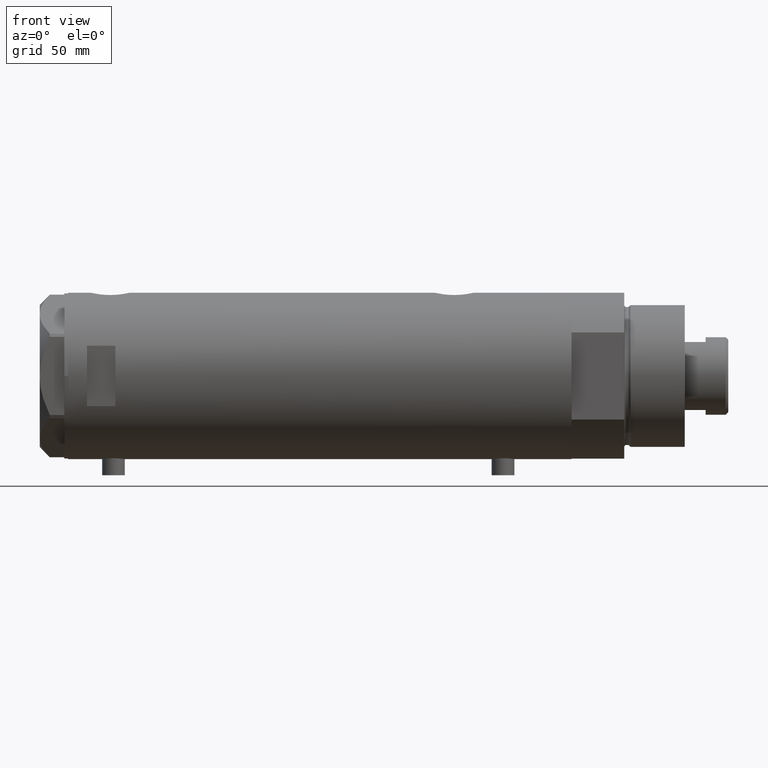
[diagram: clean part render]
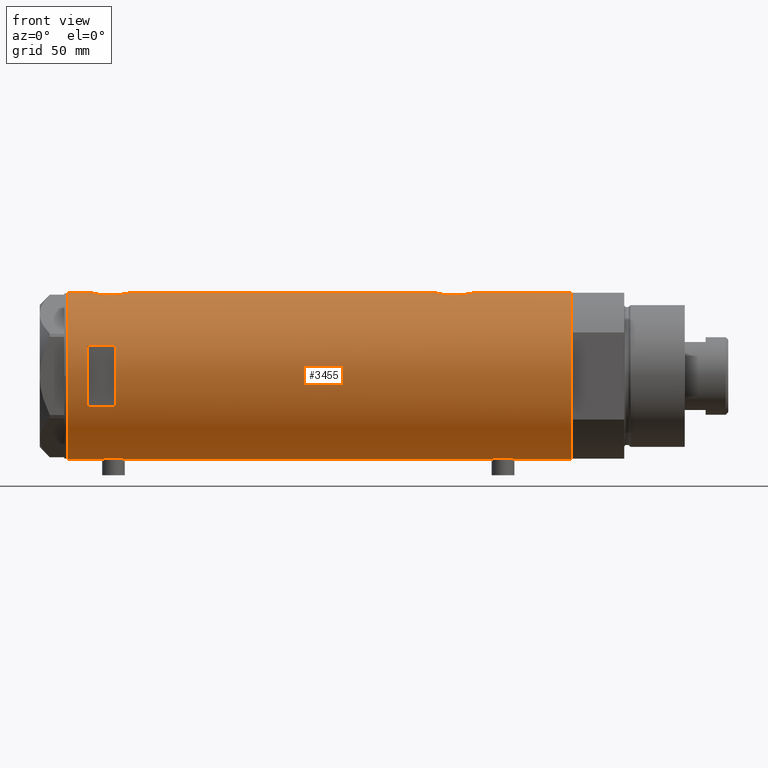
[diagram: same view with one face highlighted and labeled with its STEP entity id]
A machine part, front view. The second image highlights one B-rep face of the part: STEP entity #3455.
In plain terms, the highlighted cylindrical surface (partial cylindrical patch) has radius 44 mm, axis along (-1, -0, 0).
Its self-contained STEP definition (entity closure, byte-faithful):
#14 = CARTESIAN_POINT ( 'NONE',  ( 43.13833976206233700, -8.672905216733548528, -66.07967078979183384 ) ) ;
#34 = CARTESIAN_POINT ( 'NONE',  ( -43.97755541524606571, -1.419649999726221967, 103.1098885607636220 ) ) ;
#53 = LINE ( 'NONE', #1798, #298 ) ;
#59 = CARTESIAN_POINT ( 'NONE',  ( 43.13689707656755701, -8.680169016269172033, -76.10836902111202562 ) ) ;
#76 = VERTEX_POINT ( 'NONE', #2762 ) ;
#117 = CARTESIAN_POINT ( 'NONE',  ( -44.00000000000000000, 4.742435893011557518E-16, -90.64999999999997726 ) ) ;
#120 = CARTESIAN_POINT ( 'NONE',  ( 43.92391465552169194, -2.605621203777309436, 101.2398198489822221 ) ) ;
#136 = CARTESIAN_POINT ( 'NONE',  ( -43.80623767923739109, -4.134861581628527460, 113.9043636726069053 ) ) ;
#163 = CARTESIAN_POINT ( 'NONE',  ( -43.95404166778755695, -2.020054257598466574, -90.98191054514344955 ) ) ;
#168 = CARTESIAN_POINT ( 'NONE',  ( 44.00000000000000000, -2.552687571866728611E-15, 100.8999999999999915 ) ) ;
#184 = CARTESIAN_POINT ( 'NONE',  ( -43.58358352828439308, -6.039443007521657414, 107.5783690161426165 ) ) ;
#209 = CARTESIAN_POINT ( 'NONE',  ( 43.07447880731470491, -8.980869115410039072, 115.3470997020410209 ) ) ;
#213 = CARTESIAN_POINT ( 'NONE',  ( -43.57664920749031978, -6.089110472216501257, -98.32363086869413848 ) ) ;
#215 = EDGE_CURVE ( 'NONE', #2639, #4529, #2542, .T. ) ;
#223 = CIRCLE ( 'NONE', #3681, 44.00000000000000000 ) ;
#236 = CARTESIAN_POINT ( 'NONE',  ( -43.83513771791772484, -3.820747781112549202, -91.93678981703624231 ) ) ;
#264 = ORIENTED_EDGE ( 'NONE', *, *, #2230, .T. ) ;
#291 = CARTESIAN_POINT ( 'NONE',  ( -43.58327167020068060, -6.041691433183235205, -95.28672449216631435 ) ) ;
#298 = VECTOR ( 'NONE', #4284, 1000.000000000000000 ) ;
#316 = CARTESIAN_POINT ( 'NONE',  ( -43.71916086763248899, -4.968610719017467758, 105.3866400114537214 ) ) ;
#333 = B_SPLINE_CURVE_WITH_KNOTS ( 'NONE', 3,
 ( #3476, #4399, #2022, #1840, #2979, #2638, #2284, #1357, #1668, #635, #3083, #1690, #990, #655, #3509, #14, #2391, #2037, #2459, #4525, #2760, #2411, #2062, #2855, #1109, #3302, #3207, #2167, #1204, #59, #3625, #394, #1475, #1451, #2186, #434, #2210, #3282, #3920, #2540, #1832, #2902, #2237, #758, #2562, #1806, #462 ),
 .UNSPECIFIED., .F., .F.,
 ( 4, 2, 2, 2, 2, 2, 2, 2, 2, 2, 1, 2, 2, 2, 2, 2, 2, 2, 2, 2, 2, 2, 2, 4 ),
 ( 0.03136730421198213187, 0.03332724096696802751, 0.03528717772195392316, 0.03626714609944686751, 0.03724711447693981187, 0.03920705123192570751, 0.04018701960941865187, 0.04116698798691159622, 0.04312692474189751268, 0.04410689311939047785, 0.04508686149688344302, 0.04606682987437640819, 0.04704679825186937336, 0.04900673500685525513, 0.05096667176184113690, 0.05292660851682702561, 0.05390657689431999078, 0.05488654527181294207, 0.05586651364930590030, 0.05684648202679885853, 0.05880641878178477500, 0.05978638715927772629, 0.06076635553677067064, 0.06272629229175656629 ),
 .UNSPECIFIED. ) ;
#336 = ORIENTED_EDGE ( 'NONE', *, *, #1218, .F. ) ;
#338 = VERTEX_POINT ( 'NONE', #3053 ) ;
#361 = CARTESIAN_POINT ( 'NONE',  ( 44.00000000000000000, -2.552687571866728611E-15, 100.8999999999999915 ) ) ;
#365 = CARTESIAN_POINT ( 'NONE',  ( 0.000000000000000000, 0.000000000000000000, 108.1999999999999602 ) ) ;
#394 = CARTESIAN_POINT ( 'NONE',  ( 43.27861175590268772, -7.937636171351970304, -77.19102867990997652 ) ) ;
#434 = CARTESIAN_POINT ( 'NONE',  ( 43.50208939911752992, -6.605519787823896927, -78.61487246254434069 ) ) ;
#452 = CARTESIAN_POINT ( 'NONE',  ( 42.96573602780768653, -9.487415353952515673, 107.6726545541637989 ) ) ;
#462 = CARTESIAN_POINT ( 'NONE',  ( 44.00000000000000000, -3.135075661981687665E-15, -81.09999999999999432 ) ) ;
#464 = DIRECTION ( 'NONE',  ( -0.000000000000000000, -0.000000000000000000, -1.000000000000000000 ) ) ;
#473 = EDGE_LOOP ( 'NONE', ( #3429, #3894, #2572, #2574 ) ) ;
#492 = CARTESIAN_POINT ( 'NONE',  ( -43.64013512596971367, -5.618144550806293047, 111.9688425437316681 ) ) ;
#497 = CARTESIAN_POINT ( 'NONE',  ( 43.99999999999998579, -0.6628808997490068800, 100.8999999999999631 ) ) ;
#503 = VERTEX_POINT ( 'NONE', #1442 ) ;
#516 = CARTESIAN_POINT ( 'NONE',  ( -43.97029046111977379, -1.628482392291957126, 115.2375861979205922 ) ) ;
#523 = CARTESIAN_POINT ( 'NONE',  ( 42.92195198079053142, -9.681069926205539744, 108.3106749909348281 ) ) ;
#531 = LINE ( 'NONE', #3230, #1759 ) ;
#542 = CARTESIAN_POINT ( 'NONE',  ( -43.99417593155912698, -0.8219945290704717689, 115.4093810241296012 ) ) ;
#548 = CARTESIAN_POINT ( 'NONE',  ( 43.27861175590267351, -7.937636171351968528, 104.8089713200900377 ) ) ;
#551 = CARTESIAN_POINT ( 'NONE',  ( -43.74813644611199948, -4.709999724143497879, -92.77155956056769526 ) ) ;
#570 = CARTESIAN_POINT ( 'NONE',  ( -43.97059312650996787, -1.620278982928820888, -102.9397869138586827 ) ) ;
#581 = DIRECTION ( 'NONE',  ( -0.000000000000000000, 0.000000000000000000, -1.000000000000000000 ) ) ;
#627 = CARTESIAN_POINT ( 'NONE',  ( -43.57636709704394917, -6.091127289750676077, -95.48500674339015859 ) ) ;
#631 = CARTESIAN_POINT ( 'NONE',  ( -43.88927795770375440, -3.124736516396337649, 103.7833259507618919 ) ) ;
#635 = CARTESIAN_POINT ( 'NONE',  ( 43.57790701154753776, -6.104591320335878812, -63.15258699105066853 ) ) ;
#640 = VERTEX_POINT ( 'NONE', #2640 ) ;
#655 = CARTESIAN_POINT ( 'NONE',  ( 43.27890888111421930, -7.936045294464958211, -65.00681563342804736 ) ) ;
#722 = AXIS2_PLACEMENT_3D ( 'NONE', #4447, #581, #4093 ) ;
#723 = DIRECTION ( 'NONE',  ( -1.000000000000000000, 0.000000000000000000, 0.000000000000000000 ) ) ;
#758 = CARTESIAN_POINT ( 'NONE',  ( 43.94187300917955952, -2.283844398366611905, -80.84126046817048916 ) ) ;
#774 = CARTESIAN_POINT ( 'NONE',  ( 44.00000000000000000, -3.917104602093038540E-21, 120.8999999999999773 ) ) ;
#813 = CIRCLE ( 'NONE', #3984, 44.00000000000000000 ) ;
#814 = EDGE_CURVE ( 'NONE', #640, #338, #3128, .T. ) ;
#853 = CARTESIAN_POINT ( 'NONE',  ( 43.94187300917955241, -2.283844398366610129, 101.1587395318294966 ) ) ;
#863 = CARTESIAN_POINT ( 'NONE',  ( -15.96871942267132027, -40.99999999999999289, -133.1999999999999886 ) ) ;
#868 = CARTESIAN_POINT ( 'NONE',  ( -43.66469451360045895, -5.426465874727613325, 112.3277459186421083 ) ) ;
#874 = CARTESIAN_POINT ( 'NONE',  ( 43.13833976206234411, -8.672905216733555633, 115.9203292102081519 ) ) ;
#899 = CARTESIAN_POINT ( 'NONE',  ( 43.92776409818818451, -2.602555515054472135, 120.5780334928707589 ) ) ;
#909 = CIRCLE ( 'NONE', #2963, 44.00000000000000000 ) ;
#919 = CARTESIAN_POINT ( 'NONE',  ( 42.86761451923558042, -9.918101748202658996, 112.2186752354962636 ) ) ;
#922 = CARTESIAN_POINT ( 'NONE',  ( -43.55380622335315621, -6.250277076879243943, -96.49110166609808914 ) ) ;
#956 = DIRECTION ( 'NONE',  ( 0.000000000000000000, 0.000000000000000000, 1.000000000000000000 ) ) ;
#990 = CARTESIAN_POINT ( 'NONE',  ( 43.35323102813806884, -7.519449998269458924, -64.49957710715733583 ) ) ;
#1001 = CARTESIAN_POINT ( 'NONE',  ( -43.55964145621772587, -6.209995197331129368, -96.08476386616428044 ) ) ;
#1003 = CARTESIAN_POINT ( 'NONE',  ( -43.93596008603760339, -2.395372424984027582, 103.4165081946938756 ) ) ;
#1011 = CARTESIAN_POINT ( 'NONE',  ( 15.96871942267132027, -40.99999999999999289, -133.1999999999999886 ) ) ;
#1109 = CARTESIAN_POINT ( 'NONE',  ( 42.84850870634927134, -10.00026508230968325, -71.75583915121741541 ) ) ;
#1128 = CARTESIAN_POINT ( 'NONE',  ( 0.000000000000000000, 0.000000000000000000, -133.1999999999999886 ) ) ;
#1134 = DIRECTION ( 'NONE',  ( 1.000000000000000000, 0.000000000000000000, 0.000000000000000000 ) ) ;
#1139 = CARTESIAN_POINT ( 'NONE',  ( -43.97029046111977379, -1.628482392291957126, -90.86241380207947316 ) ) ;
#1142 = EDGE_CURVE ( 'NONE', #4529, #640, #223, .T. ) ;
#1164 = CARTESIAN_POINT ( 'NONE',  ( 43.57790701154752355, -6.104591320335877036, 118.8474130089493173 ) ) ;
#1188 = CARTESIAN_POINT ( 'NONE',  ( -43.97729452866927602, -1.427712738744854715, -90.81177092556575303 ) ) ;
#1192 = CARTESIAN_POINT ( 'NONE',  ( 43.39114022679083860, -7.298186114522533074, 117.7441727949206154 ) ) ;
#1204 = CARTESIAN_POINT ( 'NONE',  ( 43.07321175413309788, -8.986876637256990819, -75.53428201988754154 ) ) ;
#1212 = CARTESIAN_POINT ( 'NONE',  ( -43.55964145621772587, -6.209995197331129368, 110.0152361338357139 ) ) ;
#1218 = EDGE_CURVE ( 'NONE', #3494, #503, #2006, .T. ) ;
#1227 = DIRECTION ( 'NONE',  ( 0.000000000000000000, 0.000000000000000000, 1.000000000000000000 ) ) ;
#1232 = CARTESIAN_POINT ( 'NONE',  ( -43.71863308610073773, -4.973248429199020215, 113.0073779012116830 ) ) ;
#1239 = CARTESIAN_POINT ( 'NONE',  ( 43.71528002050701645, -5.005885132985640418, 119.5630630671448529 ) ) ;
#1263 = CARTESIAN_POINT ( 'NONE',  ( -43.55981666146650610, -6.208773019004409477, -97.72437999193616065 ) ) ;
#1270 = LINE ( 'NONE', #2000, #3266 ) ;
#1276 = ORIENTED_EDGE ( 'NONE', *, *, #4532, .F. ) ;
#1325 = CARTESIAN_POINT ( 'NONE',  ( -43.74870614644074607, -4.704745394280565485, -101.0344648734002391 ) ) ;
#1326 = CARTESIAN_POINT ( 'NONE',  ( 0.000000000000000000, 0.000000000000000000, 133.1999999999999886 ) ) ;
#1347 = CARTESIAN_POINT ( 'NONE',  ( -43.58358352828439308, -6.039443007521657414, -98.52163098385737783 ) ) ;
#1357 = CARTESIAN_POINT ( 'NONE',  ( 43.71528002050702355, -5.005885132985642194, -62.43693693285512580 ) ) ;
#1369 = DIRECTION ( 'NONE',  ( 0.000000000000000000, 0.000000000000000000, 1.000000000000000000 ) ) ;
#1372 = EDGE_CURVE ( 'NONE', #338, #2639, #3152, .T. ) ;
#1397 = CARTESIAN_POINT ( 'NONE',  ( -44.00000000000000000, 5.388445781982983516E-15, 102.9499999999999886 ) ) ;
#1418 = CARTESIAN_POINT ( 'NONE',  ( 44.00000000000000000, -3.917155089190972685E-21, -61.10000000000000142 ) ) ;
#1439 = B_SPLINE_CURVE_WITH_KNOTS ( 'NONE', 3,
 ( #1397, #3800, #2106, #34, #1683, #3888, #1003, #4148, #631, #3102, #4519, #3818, #3481, #316, #3341, #1593, #2622, #2503, #184, #1575, #2314, #2246, #1447, #1212, #4024, #2983, #4397, #3721, #492, #868, #1232, #2266, #136, #3702, #3913, #3226, #1893, #3000, #516, #3671, #542, #1920, #2642 ),
 .UNSPECIFIED., .F., .F.,
 ( 4, 2, 2, 1, 2, 2, 2, 2, 2, 2, 2, 2, 2, 2, 2, 2, 2, 2, 2, 2, 2, 4 ),
 ( 0.01956509074799517994, 0.02078761141254040559, 0.02139887174481301668, 0.02201013207708563124, 0.02262139240935824580, 0.02323265274163085689, 0.02445517340617610336, 0.02567769407072134982, 0.02690021473526659629, 0.02751147506753922126, 0.02812273539981184622, 0.02934525606435713085, 0.03056777672890241548, 0.03117903706117506127, 0.03179029739344770011, 0.03301281805799302638, 0.03423533872253835264, 0.03545785938708367196, 0.03668038005162899129, 0.03729164038390166136, 0.03790290071617432449, 0.03912542138071965075 ),
 .UNSPECIFIED. ) ;
#1442 = CARTESIAN_POINT ( 'NONE',  ( -44.00000000000000000, 4.742435893011557518E-16, -90.64999999999997726 ) ) ;
#1447 = CARTESIAN_POINT ( 'NONE',  ( -43.55380622335315621, -6.250277076879243943, 109.6088983339019052 ) ) ;
#1451 = CARTESIAN_POINT ( 'NONE',  ( 43.39001814939470592, -7.304817421876464323, -77.93703460671675032 ) ) ;
#1473 = CYLINDRICAL_SURFACE ( 'NONE', #1557, 44.00000000000000000 ) ;
#1475 = CARTESIAN_POINT ( 'NONE',  ( 43.35257225115238811, -7.523216248090029090, -77.69605303592344114 ) ) ;
#1516 = CARTESIAN_POINT ( 'NONE',  ( 43.98503203903423753, -1.316644100880406176, 100.9652704470436788 ) ) ;
#1557 = AXIS2_PLACEMENT_3D ( 'NONE', #1128, #2923, #3994 ) ;
#1575 = CARTESIAN_POINT ( 'NONE',  ( -43.57664920749031978, -6.089110472216501257, 107.7763691313058985 ) ) ;
#1593 = CARTESIAN_POINT ( 'NONE',  ( -43.64064219598290606, -5.614224114468902904, 106.4231451038052683 ) ) ;
#1600 = CARTESIAN_POINT ( 'NONE',  ( 43.46477581456304051, -6.845969322274853219, 103.6035553987669005 ) ) ;
#1602 = CARTESIAN_POINT ( 'NONE',  ( -43.59994860325051036, -5.920144153815573240, -98.91406357569759678 ) ) ;
#1630 = VERTEX_POINT ( 'NONE', #1750 ) ;
#1643 = CARTESIAN_POINT ( 'NONE',  ( -43.95442538259509746, -2.011679190499023662, -102.8209354650977758 ) ) ;
#1656 = CARTESIAN_POINT ( 'NONE',  ( -44.00000000000000000, 5.388445916248353619E-15, -133.1999999999999886 ) ) ;
#1659 = CARTESIAN_POINT ( 'NONE',  ( -43.87623998657198143, -3.302247739865014964, -102.2103434351974158 ) ) ;
#1666 = EDGE_CURVE ( 'NONE', #1630, #3930, #1780, .T. ) ;
#1668 = CARTESIAN_POINT ( 'NONE',  ( 43.68175117880464597, -5.289576318274436417, -62.60722456708439410 ) ) ;
#1683 = CARTESIAN_POINT ( 'NONE',  ( -43.97059312650996787, -1.620278982928820888, 103.1602130861412689 ) ) ;
#1690 = CARTESIAN_POINT ( 'NONE',  ( 43.39114022679083860, -7.298186114522532186, -64.25582720507939882 ) ) ;
#1712 = DIRECTION ( 'NONE',  ( 0.000000000000000000, 0.000000000000000000, 1.000000000000000000 ) ) ;
#1750 = CARTESIAN_POINT ( 'NONE',  ( 44.00000000000000000, -3.917104602093038540E-21, 120.8999999999999773 ) ) ;
#1756 = VECTOR ( 'NONE', #1712, 1000.000000000000000 ) ;
#1757 = EDGE_CURVE ( 'NONE', #1950, #2819, #3773, .T. ) ;
#1759 = VECTOR ( 'NONE', #2560, 1000.000000000000000 ) ;
#1780 = B_SPLINE_CURVE_WITH_KNOTS ( 'NONE', 3,
 ( #774, #3249, #1947, #899, #3367, #3708, #2627, #1239, #4354, #1164, #2575, #1192, #3320, #2917, #4076, #874, #209, #2604, #3679, #4404, #4051, #919, #1878, #3616, #2251, #2271, #523, #452, #1851, #2650, #4424, #548, #3276, #4011, #1600, #4031, #3987, #2939, #4384, #4331, #1924, #3348, #120, #853, #1516, #497, #168 ),
 .UNSPECIFIED., .F., .F.,
 ( 4, 2, 2, 2, 2, 2, 2, 2, 2, 2, 1, 2, 2, 2, 2, 2, 2, 2, 2, 2, 2, 2, 2, 4 ),
 ( 0.03136730421198213881, 0.03332724096696806915, 0.03528717772195399949, 0.03626714609944696466, 0.03724711447693992289, 0.03920705123192585323, 0.04018701960941880452, 0.04116698798691175581, 0.04312692474189768616, 0.04410689311939065826, 0.04508686149688362343, 0.04606682987437659554, 0.04704679825186956071, 0.04900673500685545636, 0.05096667176184135201, 0.05292660851682724765, 0.05390657689432017119, 0.05488654527181310167, 0.05586651364930603214, 0.05684648202679896262, 0.05880641878178481663, 0.05978638715927775404, 0.06076635553677069146, 0.06272629229175656629 ),
 .UNSPECIFIED. ) ;
#1798 = CARTESIAN_POINT ( 'NONE',  ( 44.00000000000000000, 0.000000000000000000, -133.1999999999999886 ) ) ;
#1806 = CARTESIAN_POINT ( 'NONE',  ( 44.00000000000000711, -0.6628808997490029942, -81.10000000000000853 ) ) ;
#1825 = ORIENTED_EDGE ( 'NONE', *, *, #2172, .F. ) ;
#1828 = VECTOR ( 'NONE', #4121, 1000.000000000000000 ) ;
#1832 = CARTESIAN_POINT ( 'NONE',  ( 43.85817087158039129, -3.542878095418179996, -80.45703661115524596 ) ) ;
#1840 = CARTESIAN_POINT ( 'NONE',  ( 43.92776409818818451, -2.602555515054471691, -61.42196650712917005 ) ) ;
#1851 = CARTESIAN_POINT ( 'NONE',  ( 43.07321175413309078, -8.986876637256992595, 106.4657179801124727 ) ) ;
#1860 = FACE_OUTER_BOUND ( 'NONE', #2553, .T. ) ;
#1878 = CARTESIAN_POINT ( 'NONE',  ( 42.85249883256044967, -9.983208936152871971, 111.5657221654182081 ) ) ;
#1893 = CARTESIAN_POINT ( 'NONE',  ( -43.94477385411916970, -2.211843467998029666, 115.0490722992286408 ) ) ;
#1920 = CARTESIAN_POINT ( 'NONE',  ( -44.00000000000000711, -0.4134142287044808017, 115.4500000000000313 ) ) ;
#1924 = CARTESIAN_POINT ( 'NONE',  ( 43.85817087158037708, -3.542878095418179107, 101.5429633888447825 ) ) ;
#1947 = CARTESIAN_POINT ( 'NONE',  ( 43.98543813568861793, -1.304985013906736713, 120.8365306627387525 ) ) ;
#1949 = CARTESIAN_POINT ( 'NONE',  ( -43.83572624786197025, -3.813948911733268776, -101.8683643022066150 ) ) ;
#1950 = VERTEX_POINT ( 'NONE', #4208 ) ;
#1961 = VERTEX_POINT ( 'NONE', #1418 ) ;
#1967 = CARTESIAN_POINT ( 'NONE',  ( -43.71863308610073773, -4.973248429199020215, -93.09262209878828287 ) ) ;
#1989 = CARTESIAN_POINT ( 'NONE',  ( -43.88927795770375440, -3.124736516396337649, -102.3166740492380455 ) ) ;
#2000 = CARTESIAN_POINT ( 'NONE',  ( 44.00000000000000000, 0.000000000000000000, -133.1999999999999886 ) ) ;
#2006 = B_SPLINE_CURVE_WITH_KNOTS ( 'NONE', 3,
 ( #2342, #3775, #3730, #4491, #570, #1643, #3745, #4477, #1989, #1659, #1949, #2678, #1325, #3413, #3054, #2734, #2403, #1602, #1347, #213, #1263, #3797, #922, #1001, #627, #291, #2693, #2028, #2753, #4165, #1967, #551, #3387, #236, #3035, #4455, #4099, #163, #1139, #1188, #3345, #2178, #117 ),
 .UNSPECIFIED., .F., .F.,
 ( 4, 2, 2, 1, 2, 2, 2, 2, 2, 2, 2, 2, 2, 2, 2, 2, 2, 2, 2, 2, 2, 4 ),
 ( 0.01956509074799517994, 0.02078761141254040559, 0.02139887174481301668, 0.02201013207708563124, 0.02262139240935824580, 0.02323265274163085689, 0.02445517340617610336, 0.02567769407072134982, 0.02690021473526659629, 0.02751147506753922126, 0.02812273539981184622, 0.02934525606435713085, 0.03056777672890241548, 0.03117903706117506127, 0.03179029739344770011, 0.03301281805799302638, 0.03423533872253835264, 0.03545785938708367196, 0.03668038005162899129, 0.03729164038390166136, 0.03790290071617432449, 0.03912542138071965075 ),
 .UNSPECIFIED. ) ;
#2022 = CARTESIAN_POINT ( 'NONE',  ( 43.98543813568861793, -1.304985013906734714, -61.16346933726119772 ) ) ;
#2028 = CARTESIAN_POINT ( 'NONE',  ( -43.60904414879379942, -5.852991024272603759, -94.69843683347090746 ) ) ;
#2037 = CARTESIAN_POINT ( 'NONE',  ( 42.99316244204496940, -9.359736474891654723, -67.56396979967824734 ) ) ;
#2062 = CARTESIAN_POINT ( 'NONE',  ( 42.85249883256043546, -9.983208936152871971, -70.43427783458177771 ) ) ;
#2081 = CARTESIAN_POINT ( 'NONE',  ( -44.00000000000000000, 5.388445781982983516E-15, -103.1499999999999915 ) ) ;
#2104 = ORIENTED_EDGE ( 'NONE', *, *, #1666, .F. ) ;
#2106 = CARTESIAN_POINT ( 'NONE',  ( -43.99432382855034973, -0.8140126287075730716, 102.9895783318308560 ) ) ;
#2112 = LINE ( 'NONE', #3027, #1756 ) ;
#2154 = ORIENTED_EDGE ( 'NONE', *, *, #3442, .F. ) ;
#2167 = CARTESIAN_POINT ( 'NONE',  ( 42.96573602780769363, -9.487415353952515673, -74.32734544583620107 ) ) ;
#2172 = EDGE_CURVE ( 'NONE', #2819, #2860, #813, .T. ) ;
#2174 = CARTESIAN_POINT ( 'NONE',  ( 0.000000000000000000, 0.000000000000000000, -133.1999999999999886 ) ) ;
#2178 = CARTESIAN_POINT ( 'NONE',  ( -44.00000000000000711, -0.4134142287044808017, -90.64999999999999147 ) ) ;
#2186 = CARTESIAN_POINT ( 'NONE',  ( 43.46477581456303341, -6.845969322274854107, -78.39644460123312797 ) ) ;
#2203 = VECTOR ( 'NONE', #956, 1000.000000000000000 ) ;
#2210 = CARTESIAN_POINT ( 'NONE',  ( 43.57553740812846854, -6.102230194686627307, -79.02899655988669281 ) ) ;
#2230 = EDGE_CURVE ( 'NONE', #1630, #2860, #4100, .T. ) ;
#2237 = CARTESIAN_POINT ( 'NONE',  ( 43.92391465552170615, -2.605621203777310768, -80.76018015101782055 ) ) ;
#2246 = CARTESIAN_POINT ( 'NONE',  ( -43.55388615229803406, -6.249720082677240107, 108.7826748588801706 ) ) ;
#2251 = CARTESIAN_POINT ( 'NONE',  ( 42.84850870634926423, -10.00026508230968325, 110.2441608487825988 ) ) ;
#2259 = EDGE_CURVE ( 'NONE', #1961, #3930, #53, .T. ) ;
#2266 = CARTESIAN_POINT ( 'NONE',  ( -43.74813644611199948, -4.709999724143497879, 113.3284404394322280 ) ) ;
#2271 = CARTESIAN_POINT ( 'NONE',  ( 42.86369059155248351, -9.935849517229275563, 109.5936258998179937 ) ) ;
#2284 = CARTESIAN_POINT ( 'NONE',  ( 43.77763691689010983, -4.427538730370037534, -62.12757287791929173 ) ) ;
#2314 = CARTESIAN_POINT ( 'NONE',  ( -43.55981666146650610, -6.208773019004409477, 108.3756200080638195 ) ) ;
#2338 = CARTESIAN_POINT ( 'NONE',  ( 44.00000000000000000, 0.000000000000000000, -133.1999999999999886 ) ) ;
#2342 = CARTESIAN_POINT ( 'NONE',  ( -44.00000000000000000, 5.388445781982983516E-15, -103.1499999999999915 ) ) ;
#2391 = CARTESIAN_POINT ( 'NONE',  ( 43.07447880731469780, -8.980869115410030190, -66.65290029795895066 ) ) ;
#2403 = CARTESIAN_POINT ( 'NONE',  ( -43.60943079847655213, -5.850114217193378430, -99.10921875926605651 ) ) ;
#2411 = CARTESIAN_POINT ( 'NONE',  ( 42.86761451923557331, -9.918101748202655443, -69.78132476450373645 ) ) ;
#2459 = CARTESIAN_POINT ( 'NONE',  ( 42.96858625215908489, -9.471543237354836720, -67.87555220689218061 ) ) ;
#2497 = VERTEX_POINT ( 'NONE', #2573 ) ;
#2503 = CARTESIAN_POINT ( 'NONE',  ( -43.59994860325051036, -5.920144153815573240, 107.1859364243023975 ) ) ;
#2540 = CARTESIAN_POINT ( 'NONE',  ( 43.77905627191558580, -4.445085099228550440, -80.08140834316033363 ) ) ;
#2542 = LINE ( 'NONE', #863, #3392 ) ;
#2553 = EDGE_LOOP ( 'NONE', ( #2154, #3077, #3016, #1276, #2603, #2104, #264, #1825, #2991, #3587, #3550, #336 ) ) ;
#2560 = DIRECTION ( 'NONE',  ( 0.000000000000000000, 0.000000000000000000, 1.000000000000000000 ) ) ;
#2562 = CARTESIAN_POINT ( 'NONE',  ( 43.98503203903423753, -1.316644100880407953, -81.03472955295632119 ) ) ;
#2572 = ORIENTED_EDGE ( 'NONE', *, *, #1372, .F. ) ;
#2573 = CARTESIAN_POINT ( 'NONE',  ( 44.00000000000000000, -3.135075661981687665E-15, -81.09999999999999432 ) ) ;
#2574 = ORIENTED_EDGE ( 'NONE', *, *, #814, .F. ) ;
#2575 = CARTESIAN_POINT ( 'NONE',  ( 43.50370990764397305, -6.606474645717129945, 118.4352093528488723 ) ) ;
#2603 = ORIENTED_EDGE ( 'NONE', *, *, #2259, .T. ) ;
#2604 = CARTESIAN_POINT ( 'NONE',  ( 42.99316244204496940, -9.359736474891654723, 114.4360302003217669 ) ) ;
#2622 = CARTESIAN_POINT ( 'NONE',  ( -43.60943079847655213, -5.850114217193378430, 106.9907812407339094 ) ) ;
#2627 = CARTESIAN_POINT ( 'NONE',  ( 43.77763691689010273, -4.427538730370040199, 119.8724271220806941 ) ) ;
#2638 = CARTESIAN_POINT ( 'NONE',  ( 43.80655905412562134, -4.132395729537633677, -61.98794673806234812 ) ) ;
#2639 = VERTEX_POINT ( 'NONE', #2690 ) ;
#2640 = CARTESIAN_POINT ( 'NONE',  ( 15.96871942267132027, -40.99999999999999289, 108.1999999999999602 ) ) ;
#2642 = CARTESIAN_POINT ( 'NONE',  ( -44.00000000000000000, 4.742435893011557518E-16, 115.4500000000000028 ) ) ;
#2649 = VERTEX_POINT ( 'NONE', #2338 ) ;
#2650 = CARTESIAN_POINT ( 'NONE',  ( 43.13689707656755701, -8.680169016269172033, 105.8916309788879886 ) ) ;
#2653 = EDGE_CURVE ( 'NONE', #503, #3919, #2112, .T. ) ;
#2678 = CARTESIAN_POINT ( 'NONE',  ( -43.80686114384900520, -4.128296917151112133, -101.6101585512830923 ) ) ;
#2690 = CARTESIAN_POINT ( 'NONE',  ( -15.96871942267132027, -40.99999999999999289, 123.1999999999999744 ) ) ;
#2693 = CARTESIAN_POINT ( 'NONE',  ( -43.59959777593760322, -5.922725608094071781, -94.89350688782582210 ) ) ;
#2734 = CARTESIAN_POINT ( 'NONE',  ( -43.64064219598290606, -5.614224114468902904, -99.67685489619469763 ) ) ;
#2753 = CARTESIAN_POINT ( 'NONE',  ( -43.64013512596971367, -5.618144550806293047, -94.13115745626834041 ) ) ;
#2760 = CARTESIAN_POINT ( 'NONE',  ( 42.89002978762407992, -9.821289861518533115, -69.13508362278911079 ) ) ;
#2762 = CARTESIAN_POINT ( 'NONE',  ( -44.00000000000000000, 5.388445916248353619E-15, -133.1999999999999886 ) ) ;
#2819 = VERTEX_POINT ( 'NONE', #3188 ) ;
#2825 = CARTESIAN_POINT ( 'NONE',  ( -44.00000000000000000, 5.388445781982983516E-15, 102.9499999999999886 ) ) ;
#2855 = CARTESIAN_POINT ( 'NONE',  ( 42.84860178791323193, -9.999866241079299556, -70.76603617305836735 ) ) ;
#2860 = VERTEX_POINT ( 'NONE', #3895 ) ;
#2902 = CARTESIAN_POINT ( 'NONE',  ( 43.88203303552251100, -3.235230624304770153, -80.56792613063983310 ) ) ;
#2917 = CARTESIAN_POINT ( 'NONE',  ( 43.27890888111421930, -7.936045294464972422, 116.9931843665719668 ) ) ;
#2923 = DIRECTION ( 'NONE',  ( 0.000000000000000000, 0.000000000000000000, 1.000000000000000000 ) ) ;
#2934 = VECTOR ( 'NONE', #3829, 1000.000000000000000 ) ;
#2939 = CARTESIAN_POINT ( 'NONE',  ( 43.61181667275830165, -5.838254419127787642, 102.7745589058250459 ) ) ;
#2963 = AXIS2_PLACEMENT_3D ( 'NONE', #2174, #3927, #1134 ) ;
#2979 = CARTESIAN_POINT ( 'NONE',  ( 43.88549648731376607, -3.229309612650775652, -61.61335697513614917 ) ) ;
#2983 = CARTESIAN_POINT ( 'NONE',  ( -43.58327167020068060, -6.041691433183235205, 110.8132755078336373 ) ) ;
#2991 = ORIENTED_EDGE ( 'NONE', *, *, #1757, .F. ) ;
#3000 = CARTESIAN_POINT ( 'NONE',  ( -43.95404166778755695, -2.020054257598466574, 115.1180894548565163 ) ) ;
#3016 = ORIENTED_EDGE ( 'NONE', *, *, #4378, .T. ) ;
#3027 = CARTESIAN_POINT ( 'NONE',  ( -44.00000000000000000, 5.388445916248353619E-15, -133.1999999999999886 ) ) ;
#3033 = CARTESIAN_POINT ( 'NONE',  ( -15.96871942267132027, -40.99999999999999289, 108.1999999999999602 ) ) ;
#3035 = CARTESIAN_POINT ( 'NONE',  ( -43.88932649443422918, -3.137583818903199262, -91.47900961940453612 ) ) ;
#3053 = CARTESIAN_POINT ( 'NONE',  ( 15.96871942267132027, -40.99999999999999289, 123.1999999999999744 ) ) ;
#3054 = CARTESIAN_POINT ( 'NONE',  ( -43.66524845950890210, -5.422010366683132965, -100.0353804335297951 ) ) ;
#3077 = ORIENTED_EDGE ( 'NONE', *, *, #4087, .T. ) ;
#3083 = CARTESIAN_POINT ( 'NONE',  ( 43.50370990764398726, -6.606474645717129945, -63.56479064715113481 ) ) ;
#3102 = CARTESIAN_POINT ( 'NONE',  ( -43.87623998657198143, -3.302247739865014964, 103.8896565648025643 ) ) ;
#3128 = LINE ( 'NONE', #1011, #2934 ) ;
#3152 = CIRCLE ( 'NONE', #722, 44.00000000000000000 ) ;
#3188 = CARTESIAN_POINT ( 'NONE',  ( -44.00000000000000000, 5.388445916248353619E-15, 133.1999999999999886 ) ) ;
#3207 = CARTESIAN_POINT ( 'NONE',  ( 42.92195198079052432, -9.681069926205537968, -73.68932500906512928 ) ) ;
#3226 = CARTESIAN_POINT ( 'NONE',  ( -43.91398925748691084, -2.775454910411443876, 114.8147077568105914 ) ) ;
#3230 = CARTESIAN_POINT ( 'NONE',  ( -44.00000000000000000, 5.388445916248353619E-15, -133.1999999999999886 ) ) ;
#3249 = CARTESIAN_POINT ( 'NONE',  ( 44.00000000000000000, -0.6537011444665535853, 120.8999999999999631 ) ) ;
#3266 = VECTOR ( 'NONE', #1227, 1000.000000000000000 ) ;
#3276 = CARTESIAN_POINT ( 'NONE',  ( 43.35257225115238100, -7.523216248090028202, 104.3039469640765304 ) ) ;
#3282 = CARTESIAN_POINT ( 'NONE',  ( 43.61181667275830875, -5.838254419127786754, -79.22544109417493985 ) ) ;
#3302 = CARTESIAN_POINT ( 'NONE',  ( 42.86369059155249062, -9.935849517229277339, -72.40637410018199205 ) ) ;
#3320 = CARTESIAN_POINT ( 'NONE',  ( 43.35323102813806173, -7.519449998269472246, 117.5004228928426357 ) ) ;
#3341 = CARTESIAN_POINT ( 'NONE',  ( -43.66524845950890210, -5.422010366683132965, 106.0646195664701850 ) ) ;
#3345 = CARTESIAN_POINT ( 'NONE',  ( -43.99417593155912698, -0.8219945290704717689, -90.69061897587037890 ) ) ;
#3348 = CARTESIAN_POINT ( 'NONE',  ( 43.88203303552251100, -3.235230624304767932, 101.4320738693601527 ) ) ;
#3367 = CARTESIAN_POINT ( 'NONE',  ( 43.88549648731375896, -3.229309612650779204, 120.3866430248638295 ) ) ;
#3387 = CARTESIAN_POINT ( 'NONE',  ( -43.80623767923739109, -4.134861581628527460, -92.19563632739300374 ) ) ;
#3392 = VECTOR ( 'NONE', #464, 1000.000000000000000 ) ;
#3413 = CARTESIAN_POINT ( 'NONE',  ( -43.71916086763248899, -4.968610719017467758, -100.7133599885462445 ) ) ;
#3429 = ORIENTED_EDGE ( 'NONE', *, *, #1142, .F. ) ;
#3442 = EDGE_CURVE ( 'NONE', #76, #3494, #531, .T. ) ;
#3455 = ADVANCED_FACE ( 'NONE', ( #1860, #4363 ), #1473, .T. ) ;
#3476 = CARTESIAN_POINT ( 'NONE',  ( 44.00000000000000000, -3.917155089190972685E-21, -61.10000000000000142 ) ) ;
#3481 = CARTESIAN_POINT ( 'NONE',  ( -43.74870614644074607, -4.704745394280565485, 105.0655351265997552 ) ) ;
#3494 = VERTEX_POINT ( 'NONE', #2081 ) ;
#3509 = CARTESIAN_POINT ( 'NONE',  ( 43.24269204559828950, -8.130405600641541497, -65.26885497193005392 ) ) ;
#3550 = ORIENTED_EDGE ( 'NONE', *, *, #2653, .F. ) ;
#3587 = ORIENTED_EDGE ( 'NONE', *, *, #3967, .F. ) ;
#3616 = CARTESIAN_POINT ( 'NONE',  ( 42.84860178791322483, -9.999866241079296003, 111.2339638269416184 ) ) ;
#3625 = CARTESIAN_POINT ( 'NONE',  ( 43.24192112218942441, -8.134529092006102857, -76.92552229864108426 ) ) ;
#3671 = CARTESIAN_POINT ( 'NONE',  ( -43.97729452866927602, -1.427712738744854715, 115.2882290744342129 ) ) ;
#3679 = CARTESIAN_POINT ( 'NONE',  ( 42.96858625215907779, -9.471543237354833167, 114.1244477931078194 ) ) ;
#3681 = AXIS2_PLACEMENT_3D ( 'NONE', #365, #3890, #723 ) ;
#3702 = CARTESIAN_POINT ( 'NONE',  ( -43.83513771791772484, -3.820747781112549202, 114.1632101829636952 ) ) ;
#3708 = CARTESIAN_POINT ( 'NONE',  ( 43.80655905412562134, -4.132395729537633677, 120.0120532619375950 ) ) ;
#3721 = CARTESIAN_POINT ( 'NONE',  ( -43.60904414879379942, -5.852991024272603759, 111.4015631665290584 ) ) ;
#3730 = CARTESIAN_POINT ( 'NONE',  ( -43.99432382855034973, -0.8140126287075730716, -103.1104216681691383 ) ) ;
#3745 = CARTESIAN_POINT ( 'NONE',  ( -43.93596008603760339, -2.395372424984027582, -102.6834918053061187 ) ) ;
#3773 = LINE ( 'NONE', #1656, #2203 ) ;
#3775 = CARTESIAN_POINT ( 'NONE',  ( -44.00000000000001421, -0.4080709675389184166, -103.1500000000000199 ) ) ;
#3797 = CARTESIAN_POINT ( 'NONE',  ( -43.55388615229803406, -6.249720082677240107, -97.31732514111982368 ) ) ;
#3800 = CARTESIAN_POINT ( 'NONE',  ( -44.00000000000001421, -0.4080709675389184166, 102.9499999999999886 ) ) ;
#3818 = CARTESIAN_POINT ( 'NONE',  ( -43.80686114384900520, -4.128296917151112133, 104.4898414487168878 ) ) ;
#3829 = DIRECTION ( 'NONE',  ( 0.000000000000000000, 0.000000000000000000, 1.000000000000000000 ) ) ;
#3888 = CARTESIAN_POINT ( 'NONE',  ( -43.95442538259509746, -2.011679190499023662, 103.2790645349021474 ) ) ;
#3890 = DIRECTION ( 'NONE',  ( 0.000000000000000000, 0.000000000000000000, 1.000000000000000000 ) ) ;
#3894 = ORIENTED_EDGE ( 'NONE', *, *, #215, .F. ) ;
#3895 = CARTESIAN_POINT ( 'NONE',  ( 44.00000000000000000, 0.000000000000000000, 133.1999999999999886 ) ) ;
#3913 = CARTESIAN_POINT ( 'NONE',  ( -43.88932649443422918, -3.137583818903199262, 114.6209903805954013 ) ) ;
#3919 = VERTEX_POINT ( 'NONE', #2825 ) ;
#3920 = CARTESIAN_POINT ( 'NONE',  ( 43.71626298452613213, -5.019105827807320175, -79.77413437979596722 ) ) ;
#3927 = DIRECTION ( 'NONE',  ( 0.000000000000000000, 0.000000000000000000, 1.000000000000000000 ) ) ;
#3930 = VERTEX_POINT ( 'NONE', #361 ) ;
#3967 = EDGE_CURVE ( 'NONE', #3919, #1950, #1439, .T. ) ;
#3984 = AXIS2_PLACEMENT_3D ( 'NONE', #1326, #1369, #4144 ) ;
#3987 = CARTESIAN_POINT ( 'NONE',  ( 43.57553740812844723, -6.102230194686623754, 102.9710034401132788 ) ) ;
#3994 = DIRECTION ( 'NONE',  ( 1.000000000000000000, 0.000000000000000000, 0.000000000000000000 ) ) ;
#4011 = CARTESIAN_POINT ( 'NONE',  ( 43.39001814939472013, -7.304817421876465211, 104.0629653932832781 ) ) ;
#4024 = CARTESIAN_POINT ( 'NONE',  ( -43.57636709704394917, -6.091127289750676077, 110.6149932566098784 ) ) ;
#4031 = CARTESIAN_POINT ( 'NONE',  ( 43.50208939911752992, -6.605519787823896927, 103.3851275374556877 ) ) ;
#4051 = CARTESIAN_POINT ( 'NONE',  ( 42.89003040145177437, -9.821289533110931558, 112.8649162832999195 ) ) ;
#4076 = CARTESIAN_POINT ( 'NONE',  ( 43.24269204559828950, -8.130405600641543273, 116.7311450280699034 ) ) ;
#4087 = EDGE_CURVE ( 'NONE', #76, #2649, #909, .T. ) ;
#4093 = DIRECTION ( 'NONE',  ( 1.000000000000000000, 0.000000000000000000, 0.000000000000000000 ) ) ;
#4099 = CARTESIAN_POINT ( 'NONE',  ( -43.94477385411916970, -2.211843467998029666, -91.05092770077138198 ) ) ;
#4100 = LINE ( 'NONE', #4478, #1828 ) ;
#4121 = DIRECTION ( 'NONE',  ( 0.000000000000000000, 0.000000000000000000, 1.000000000000000000 ) ) ;
#4144 = DIRECTION ( 'NONE',  ( 1.000000000000000000, 0.000000000000000000, 0.000000000000000000 ) ) ;
#4148 = CARTESIAN_POINT ( 'NONE',  ( -43.91347832647110039, -2.763895659397271665, 103.5906135062241447 ) ) ;
#4165 = CARTESIAN_POINT ( 'NONE',  ( -43.66469451360045895, -5.426465874727613325, -93.77225408135787177 ) ) ;
#4208 = CARTESIAN_POINT ( 'NONE',  ( -44.00000000000000000, 4.742435893011557518E-16, 115.4500000000000028 ) ) ;
#4284 = DIRECTION ( 'NONE',  ( 0.000000000000000000, 0.000000000000000000, 1.000000000000000000 ) ) ;
#4331 = CARTESIAN_POINT ( 'NONE',  ( 43.77905627191560001, -4.445085099228551329, 101.9185916568396664 ) ) ;
#4354 = CARTESIAN_POINT ( 'NONE',  ( 43.68175117880464597, -5.289576318274436417, 119.3927754329155562 ) ) ;
#4363 = FACE_BOUND ( 'NONE', #473, .T. ) ;
#4378 = EDGE_CURVE ( 'NONE', #2649, #2497, #1270, .T. ) ;
#4384 = CARTESIAN_POINT ( 'NONE',  ( 43.71626298452613923, -5.019105827807321951, 102.2258656202040186 ) ) ;
#4397 = CARTESIAN_POINT ( 'NONE',  ( -43.59959777593760322, -5.922725608094071781, 111.2064931121741154 ) ) ;
#4399 = CARTESIAN_POINT ( 'NONE',  ( 44.00000000000001421, -0.6537011444665502546, -61.10000000000001563 ) ) ;
#4404 = CARTESIAN_POINT ( 'NONE',  ( 42.92612181419236350, -9.662173761604313071, 113.4979978960971465 ) ) ;
#4424 = CARTESIAN_POINT ( 'NONE',  ( 43.24192112218943151, -8.134529092006102857, 105.0744777013589157 ) ) ;
#4447 = CARTESIAN_POINT ( 'NONE',  ( 0.000000000000000000, 0.000000000000000000, 123.1999999999999744 ) ) ;
#4455 = CARTESIAN_POINT ( 'NONE',  ( -43.91398925748691084, -2.775454910411443876, -91.28529224318931767 ) ) ;
#4477 = CARTESIAN_POINT ( 'NONE',  ( -43.91347832647110039, -2.763895659397271665, -102.5093864937758354 ) ) ;
#4478 = CARTESIAN_POINT ( 'NONE',  ( 44.00000000000000000, 0.000000000000000000, -133.1999999999999886 ) ) ;
#4491 = CARTESIAN_POINT ( 'NONE',  ( -43.97755541524606571, -1.419649999726221967, -102.9901114392363297 ) ) ;
#4519 = CARTESIAN_POINT ( 'NONE',  ( -43.83572624786197025, -3.813948911733268776, 104.2316356977933935 ) ) ;
#4525 = CARTESIAN_POINT ( 'NONE',  ( 42.92612181419237061, -9.662173761604313071, -68.50200210390286770 ) ) ;
#4529 = VERTEX_POINT ( 'NONE', #3033 ) ;
#4532 = EDGE_CURVE ( 'NONE', #1961, #2497, #333, .T. ) ;